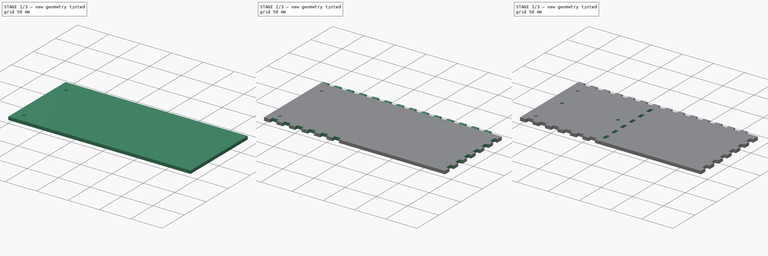
[diagram: build sequence overview — one tinted view per stage of 3, left to right]
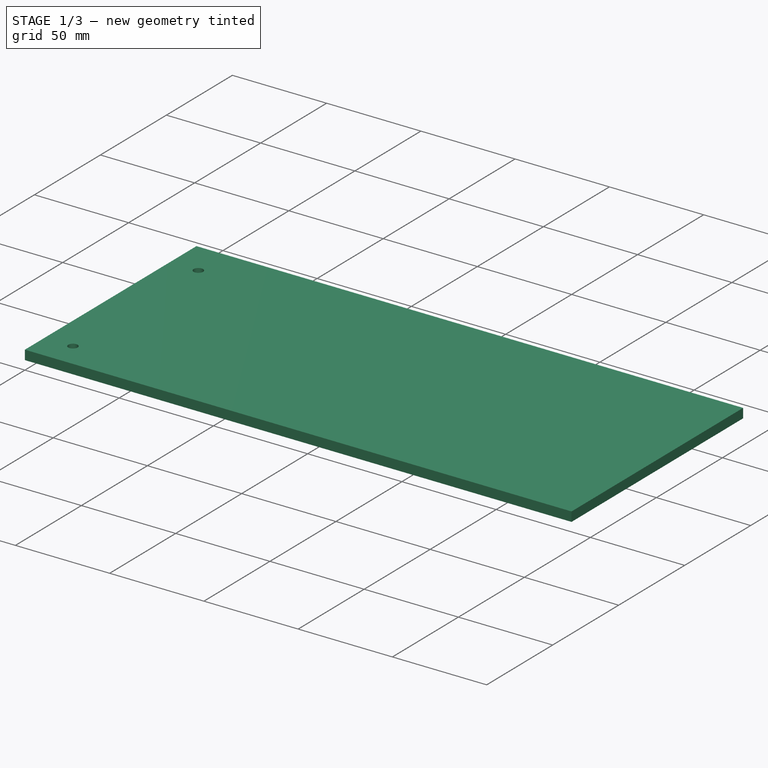
[diagram: stage 1 of 3 — iso view after this stage's code; geometry added in this stage tinted green]
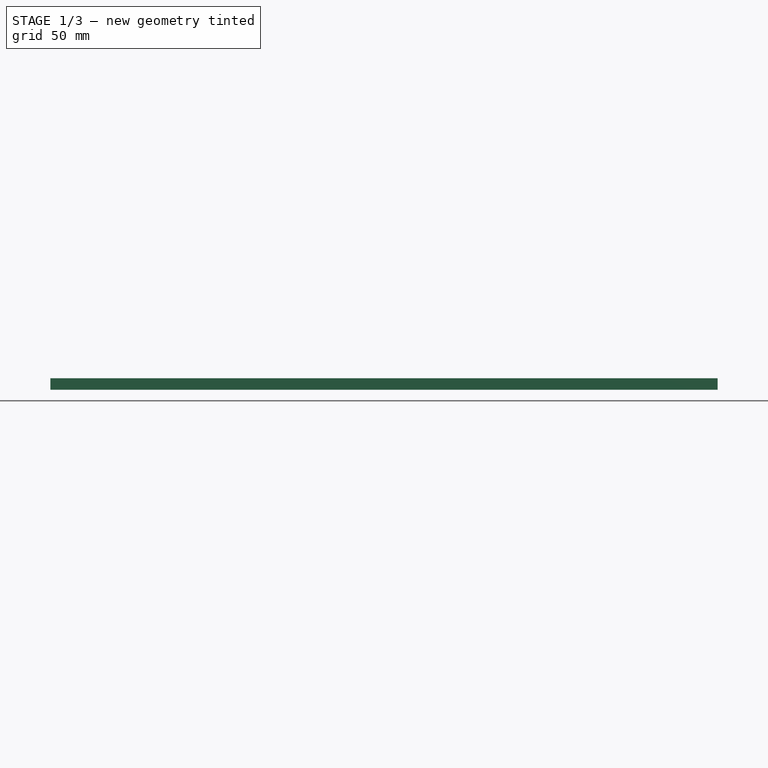
[diagram: stage 1 of 3 — front view after this stage's code; geometry added in this stage tinted green]
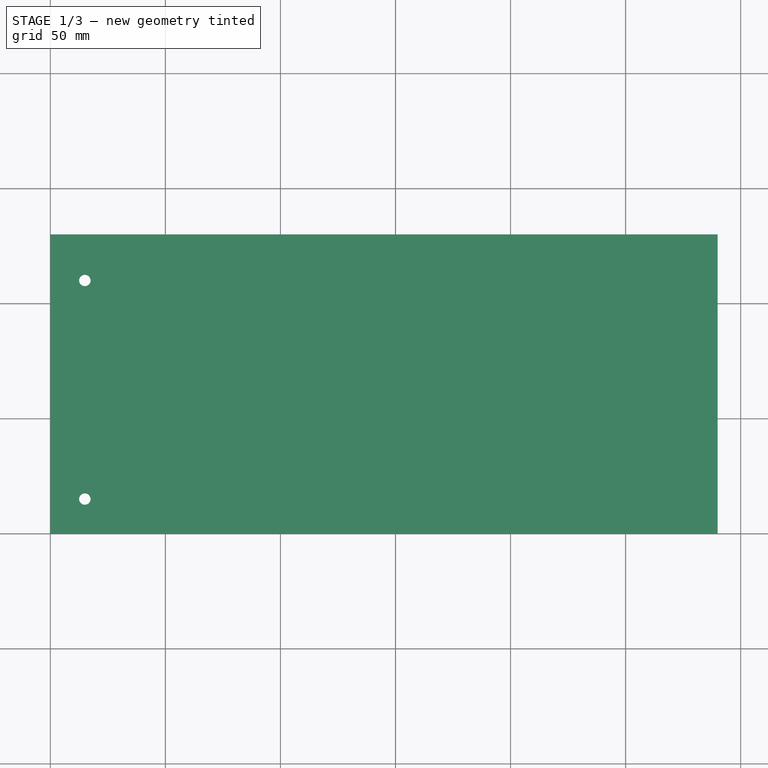
[diagram: stage 1 of 3 — top view after this stage's code; geometry added in this stage tinted green]
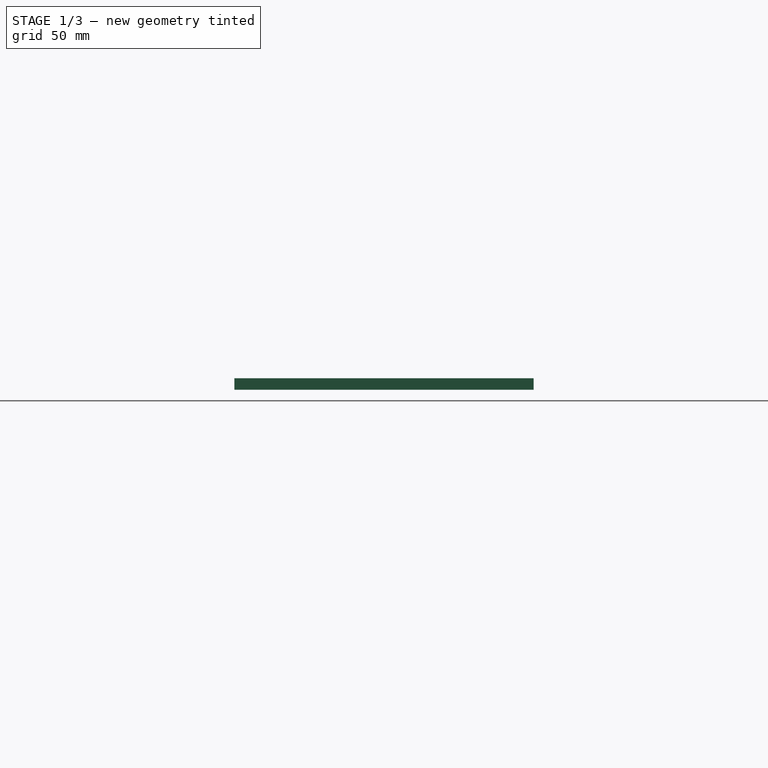
[diagram: stage 1 of 3 — right view after this stage's code; geometry added in this stage tinted green]
FCSTD DOCUMENT  (FreeCAD 0.19R24267 +148 (Git))
Label: BasePlate
License: All rights reserved
LicenseURL: http://en.wikipedia.org/wiki/All_rights_reserved
objects: Sketcher::SketchObject×7, PartDesign::Pocket×5, PartDesign::Pad×2, PartDesign::Body×1
note: 22 computed .brp shape members not serialized (recipe doc carries the construction recipe); baked Part::Feature solids carry a one-line shape summary decoded from their .brp

FEATURE [Sketcher::SketchObject] Sketch  label="BaseProfile"
  FullyConstrained = true
  MapMode = 5
  Support = -> [XY_Plane]
  sketch-geometry (4):
    g0: LineSegment StartX=0 StartY=0 StartZ=0 EndX=290 EndY=0 EndZ=0
    g1: LineSegment StartX=290 StartY=0 StartZ=0 EndX=290 EndY=130 EndZ=0
    g2: LineSegment StartX=290 StartY=130 StartZ=0 EndX=0 EndY=130 EndZ=0
    g3: LineSegment StartX=0 StartY=130 StartZ=0 EndX=0 EndY=0 EndZ=0
  constraints (11):
    c: Coincident(g0,g1)
    c: Coincident(g1,g2)
    c: Coincident(g2,g3)
    c: Coincident(g3,g0)
    c: Horizontal(g0)
    c: Horizontal(g2)
    c: Vertical(g1)
    c: Vertical(g3)
    c: Coincident(g0,g-1)
    c: Distance(g0) = 290
    c: Distance(g1) = 130
FEATURE [PartDesign::Pad] Pad
  Direction = (1,1,1)
  Length = 5
  Length2 = 100
  Midplane = true
  Profile = -> Sketch
  Refine = true
  Type = 0
FEATURE [Sketcher::SketchObject] Sketch001  label="hole"
  FullyConstrained = true
  MapMode = 5
  Placement = pos=(0,0,2.5) rot=(0,0,1;0rad)
  Support = -> [Pad]
  sketch-geometry (3):
    g0: Circle CenterX=15 CenterY=110 CenterZ=0 NormalX=0 NormalY=0 NormalZ=1 AngleXU=0 Radius=2.5
    g1: Circle CenterX=15 CenterY=15 CenterZ=0 NormalX=0 NormalY=0 NormalZ=1 AngleXU=0 Radius=2.5
    g2: LineSegment StartX=15 StartY=110 StartZ=0 EndX=15 EndY=15 EndZ=0
  constraints (8):
    c: Equal(g1,g0)
    c: Radius(g0) = 2.5
    c: Coincident(g2,g0)
    c: Coincident(g2,g1)
    c: Vertical(g2)
    c: Distance(g-1,g2) = 15
    c: Distance(g1,g-1) = 15
    c: Distance(g2) = 95
FEATURE [PartDesign::Pocket] Pocket  label="HoleOfTry_Square"
  BaseFeature = -> Pad
  Length = 5
  Length2 = 100
  Profile = -> Sketch001
  Refine = true
  Type = 1
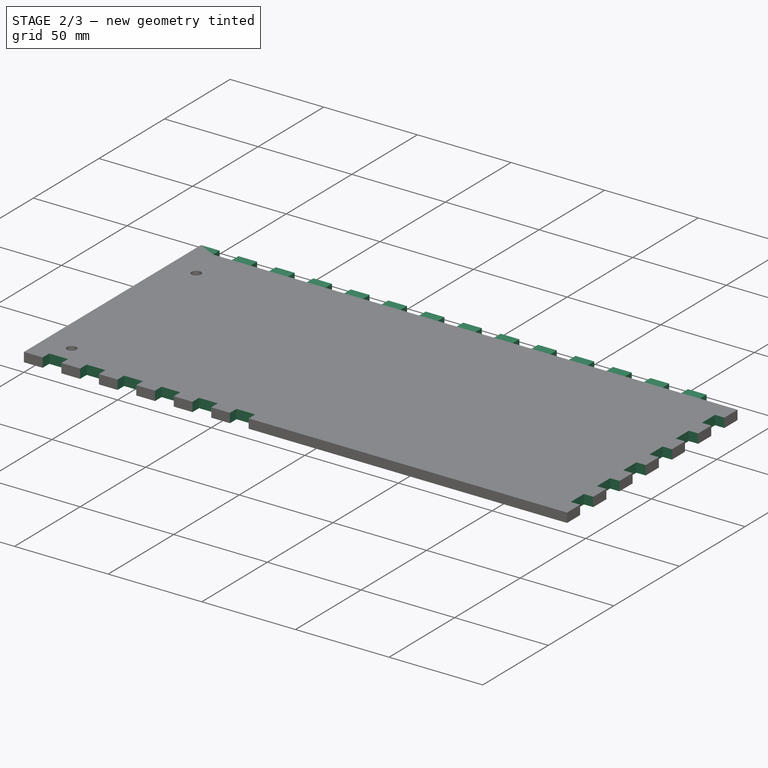
[diagram: stage 2 of 3 — iso view after this stage's code; geometry added in this stage tinted green]
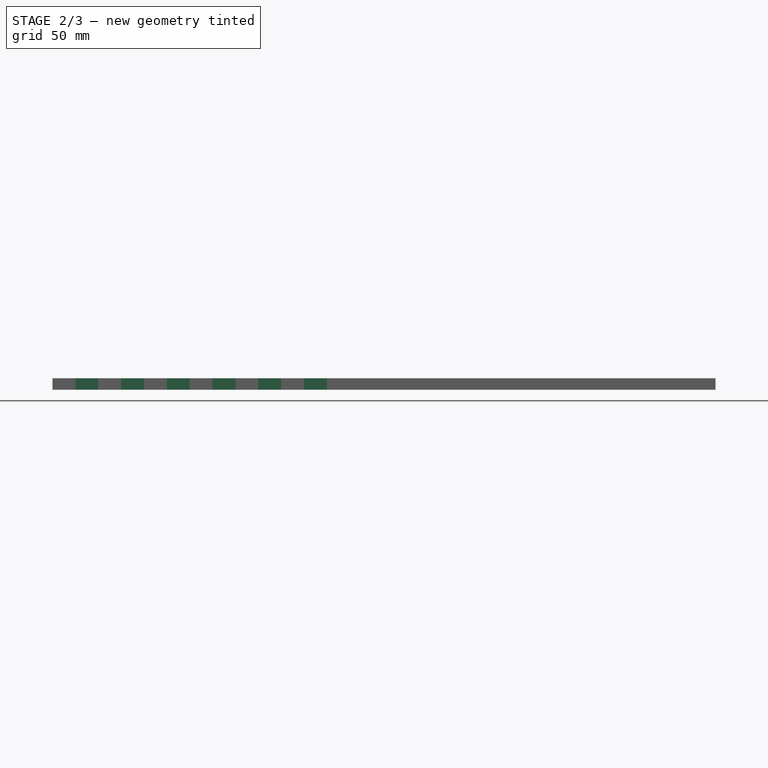
[diagram: stage 2 of 3 — front view after this stage's code; geometry added in this stage tinted green]
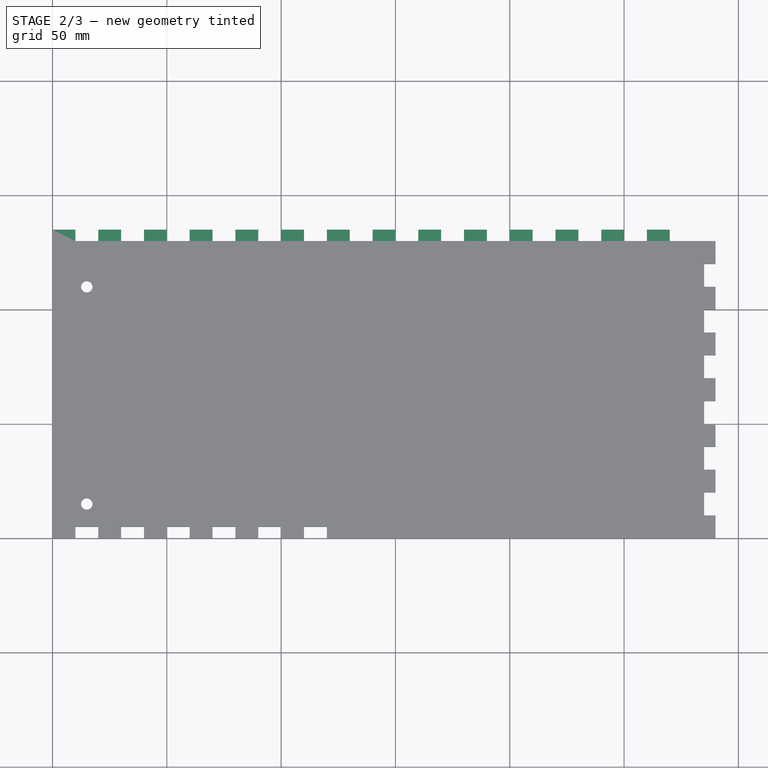
[diagram: stage 2 of 3 — top view after this stage's code; geometry added in this stage tinted green]
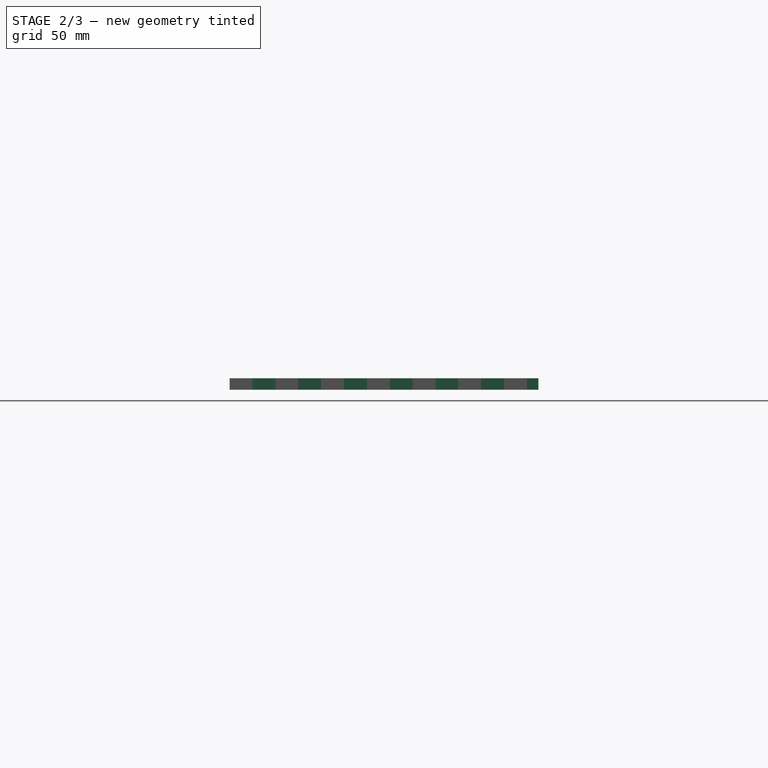
[diagram: stage 2 of 3 — right view after this stage's code; geometry added in this stage tinted green]
FEATURE [Sketcher::SketchObject] Sketch002
  FullyConstrained = true
  MapMode = 5
  Placement = pos=(0,0,2.5) rot=(0,0,1;0rad)
  Support = -> [Pocket]
  sketch-geometry (29):
    g0: LineSegment StartX=290 StartY=20 StartZ=0 EndX=285 EndY=20 EndZ=0
    g1: LineSegment StartX=285 StartY=20 StartZ=0 EndX=285 EndY=10 EndZ=0
    g2: LineSegment StartX=285 StartY=10 StartZ=0 EndX=290 EndY=10 EndZ=0
    g3: LineSegment StartX=290 StartY=10 StartZ=0 EndX=290 EndY=20 EndZ=0
    g4: LineSegment StartX=290 StartY=40 StartZ=0 EndX=285 EndY=40 EndZ=0
    g5: LineSegment StartX=285 StartY=40 StartZ=0 EndX=285 EndY=30 EndZ=0
    g6: LineSegment StartX=285 StartY=30 StartZ=0 EndX=290 EndY=30 EndZ=0
    g7: LineSegment StartX=290 StartY=30 StartZ=0 EndX=290 EndY=40 EndZ=0
    g8: LineSegment StartX=290 StartY=20 StartZ=0 EndX=290 EndY=40 EndZ=0
    g9: LineSegment StartX=290 StartY=60 StartZ=0 EndX=285 EndY=60 EndZ=0
    g10: LineSegment StartX=285 StartY=60 StartZ=0 EndX=285 EndY=50 EndZ=0
    g11: LineSegment StartX=285 StartY=50 StartZ=0 EndX=290 EndY=50 EndZ=0
    g12: LineSegment StartX=290 StartY=50 StartZ=0 EndX=290 EndY=60 EndZ=0
    g13: LineSegment StartX=290 StartY=40 StartZ=0 EndX=290 EndY=60 EndZ=0
    g14: LineSegment StartX=290 StartY=80 StartZ=0 EndX=285 EndY=80 EndZ=0
    g15: LineSegment StartX=285 StartY=80 StartZ=0 EndX=285 EndY=70 EndZ=0
    g16: LineSegment StartX=285 StartY=70 StartZ=0 EndX=290 EndY=70 EndZ=0
    g17: LineSegment StartX=290 StartY=70 StartZ=0 EndX=290 EndY=80 EndZ=0
    g18: LineSegment StartX=290 StartY=60 StartZ=0 EndX=290 EndY=80 EndZ=0
    g19: LineSegment StartX=290 StartY=100 StartZ=0 EndX=285 EndY=100 EndZ=0
    g20: LineSegment StartX=285 StartY=100 StartZ=0 EndX=285 EndY=90 EndZ=0
    g21: LineSegment StartX=285 StartY=90 StartZ=0 EndX=290 EndY=90 EndZ=0
    g22: LineSegment StartX=290 StartY=90 StartZ=0 EndX=290 EndY=100 EndZ=0
    g23: LineSegment StartX=290 StartY=80 StartZ=0 EndX=290 EndY=100 EndZ=0
    g24: LineSegment StartX=290 StartY=120 StartZ=0 EndX=285 EndY=120 EndZ=0
    g25: LineSegment StartX=285 StartY=120 StartZ=0 EndX=285 EndY=110 EndZ=0
    g26: LineSegment StartX=285 StartY=110 StartZ=0 EndX=290 EndY=110 EndZ=0
    g27: LineSegment StartX=290 StartY=110 StartZ=0 EndX=290 EndY=120 EndZ=0
    g28: LineSegment StartX=290 StartY=100 StartZ=0 EndX=290 EndY=120 EndZ=0
  constraints (82):
    c: Coincident(g0,g1)
    c: Coincident(g1,g2)
    c: Coincident(g2,g3)
    c: Coincident(g3,g0)
    c: Horizontal(g0)
    c: Horizontal(g2)
    c: Vertical(g1)
    c: Vertical(g3)
    c: Distance(g3) = 10
    c: Distance(g2) = 5
    c: Distance(g-1,g2) = 10
    c: Distance(g2,g-2) = 290
    c: Coincident(g4,g5)
    c: Coincident(g5,g6)
    c: Coincident(g6,g7)
    c: Coincident(g7,g4)
    c: Horizontal(g4)
    c: Horizontal(g6)
    c: Vertical(g5)
    c: Vertical(g7)
    c: Equal(g3,g7) = 10
    c: Equal(g2,g6) = 5
    c: Coincident(g0,g8)
    c: Coincident(g4,g8)
    c: Distance(g8) = 20
    c: Coincident(g9,g10)
    c: Coincident(g10,g11)
    c: Coincident(g11,g12)
    c: Coincident(g12,g9)
    c: Horizontal(g9)
    c: Horizontal(g11)
    c: Vertical(g10)
    c: Vertical(g12)
    c: Equal(g3,g12) = 10
    c: Equal(g2,g11) = 5
    c: Coincident(g4,g13)
    c: Coincident(g9,g13)
    c: Equal(g8,g13)
    c: Parallel(g13,g8)
    c: Coincident(g14,g15)
    c: Coincident(g15,g16)
    c: Coincident(g16,g17)
    c: Coincident(g17,g14)
    c: Horizontal(g14)
    c: Horizontal(g16)
    c: Vertical(g15)
    c: Vertical(g17)
    c: Equal(g3,g17) = 10
    c: Equal(g2,g16) = 5
    c: Coincident(g9,g18)
    c: Coincident(g14,g18)
    c: Equal(g8,g18)
    c: Parallel(g18,g8)
    c: Coincident(g19,g20)
    c: Coincident(g20,g21)
    c: Coincident(g21,g22)
    c: Coincident(g22,g19)
    c: Horizontal(g19)
    c: Horizontal(g21)
    c: Vertical(g20)
    c: Vertical(g22)
    c: Equal(g3,g22) = 10
    c: Equal(g2,g21) = 5
    c: Coincident(g14,g23)
    c: Coincident(g19,g23)
    c: Equal(g8,g23)
    c: Parallel(g23,g8)
    c: Coincident(g24,g25)
    c: Coincident(g25,g26)
    c: Coincident(g26,g27)
    c: Coincident(g27,g24)
    c: Horizontal(g24)
    c: Horizontal(g26)
    c: Vertical(g25)
    c: Vertical(g27)
    c: Equal(g3,g27) = 10
    c: Equal(g2,g26) = 5
    c: Coincident(g19,g28)
    c: Coincident(g24,g28)
    c: Equal(g8,g28)
    c: Parallel(g28,g8)
    c: Vertical(g13)
FEATURE [PartDesign::Pocket] Pocket001  label="RightCrenel"
  BaseFeature = -> Pocket
  Length = 5
  Length2 = 100
  Profile = -> Sketch002
  Refine = true
  Type = 1
FEATURE [Sketcher::SketchObject] Sketch003
  ExternalGeometry = -> [Pocket001]
  FullyConstrained = true
  MapMode = 5
  Placement = pos=(0,0,2.5) rot=(0,0,1;0rad)
  Support = -> [Pocket001]
  sketch-geometry (69):
    g0: LineSegment StartX=0 StartY=135 StartZ=0 EndX=10 EndY=135 EndZ=0
    g1: LineSegment StartX=10 StartY=135 StartZ=0 EndX=10 EndY=130 EndZ=0
    g2: LineSegment StartX=10 StartY=130 StartZ=0 EndX=0 EndY=130 EndZ=0
    g3: LineSegment StartX=0 StartY=130 StartZ=0 EndX=0 EndY=135 EndZ=0
    g4: LineSegment StartX=20 StartY=135 StartZ=0 EndX=30 EndY=135 EndZ=0
    g5: LineSegment StartX=30 StartY=135 StartZ=0 EndX=30 EndY=130 EndZ=0
    g6: LineSegment StartX=30 StartY=130 StartZ=0 EndX=20 EndY=130 EndZ=0
    g7: LineSegment StartX=20 StartY=130 StartZ=0 EndX=20 EndY=135 EndZ=0
    g8: LineSegment StartX=0 StartY=135 StartZ=0 EndX=20 EndY=135 EndZ=0
    g9: LineSegment StartX=40 StartY=135 StartZ=0 EndX=50 EndY=135 EndZ=0
    g10: LineSegment StartX=50 StartY=135 StartZ=0 EndX=50 EndY=130 EndZ=0
    g11: LineSegment StartX=50 StartY=130 StartZ=0 EndX=40 EndY=130 EndZ=0
    g12: LineSegment StartX=40 StartY=130 StartZ=0 EndX=40 EndY=135 EndZ=0
    g13: LineSegment StartX=20 StartY=135 StartZ=0 EndX=40 EndY=135 EndZ=0
    g14: LineSegment StartX=60 StartY=135 StartZ=0 EndX=70 EndY=135 EndZ=0
    g15: LineSegment StartX=70 StartY=135 StartZ=0 EndX=70 EndY=130 EndZ=0
    g16: LineSegment StartX=70 StartY=130 StartZ=0 EndX=60 EndY=130 EndZ=0
    g17: LineSegment StartX=60 StartY=130 StartZ=0 EndX=60 EndY=135 EndZ=0
    g18: LineSegment StartX=40 StartY=135 StartZ=0 EndX=60 EndY=135 EndZ=0
    g19: LineSegment StartX=80 StartY=135 StartZ=0 EndX=90 EndY=135 EndZ=0
    g20: LineSegment StartX=90 StartY=135 StartZ=0 EndX=90 EndY=130 EndZ=0
    g21: LineSegment StartX=90 StartY=130 StartZ=0 EndX=80 EndY=130 EndZ=0
    g22: LineSegment StartX=80 StartY=130 StartZ=0 EndX=80 EndY=135 EndZ=0
    g23: LineSegment StartX=60 StartY=135 StartZ=0 EndX=80 EndY=135 EndZ=0
    g24: LineSegment StartX=100 StartY=135 StartZ=0 EndX=110 EndY=135 EndZ=0
    g25: LineSegment StartX=110 StartY=135 StartZ=0 EndX=110 EndY=130 EndZ=0
    g26: LineSegment StartX=110 StartY=130 StartZ=0 EndX=100 EndY=130 EndZ=0
    g27: LineSegment StartX=100 StartY=130 StartZ=0 EndX=100 EndY=135 EndZ=0
    g28: LineSegment StartX=80 StartY=135 StartZ=0 EndX=100 EndY=135 EndZ=0
    g29: LineSegment StartX=120 StartY=135 StartZ=0 EndX=130 EndY=135 EndZ=0
    g30: LineSegment StartX=130 StartY=135 StartZ=0 EndX=130 EndY=130 EndZ=0
    g31: LineSegment StartX=130 StartY=130 StartZ=0 EndX=120 EndY=130 EndZ=0
    g32: LineSegment StartX=120 StartY=130 StartZ=0 EndX=120 EndY=135 EndZ=0
    g33: LineSegment StartX=100 StartY=135 StartZ=0 EndX=120 EndY=135 EndZ=0
    g34: LineSegment StartX=140 StartY=135 StartZ=0 EndX=150 EndY=135 EndZ=0
    g35: LineSegment StartX=150 StartY=135 StartZ=0 EndX=150 EndY=130 EndZ=0
    g36: LineSegment StartX=150 StartY=130 StartZ=0 EndX=140 EndY=130 EndZ=0
    g37: LineSegment StartX=140 StartY=130 StartZ=0 EndX=140 EndY=135 EndZ=0
    g38: LineSegment StartX=120 StartY=135 StartZ=0 EndX=140 EndY=135 EndZ=0
    g39: LineSegment StartX=160 StartY=135 StartZ=0 EndX=170 EndY=135 EndZ=0
    g40: LineSegment StartX=170 StartY=135 StartZ=0 EndX=170 EndY=130 EndZ=0
    g41: LineSegment StartX=170 StartY=130 StartZ=0 EndX=160 EndY=130 EndZ=0
    g42: LineSegment StartX=160 StartY=130 StartZ=0 EndX=160 EndY=135 EndZ=0
    g43: LineSegment StartX=140 StartY=135 StartZ=0 EndX=160 EndY=135 EndZ=0
    g44: LineSegment StartX=180 StartY=135 StartZ=0 EndX=190 EndY=135 EndZ=0
    g45: LineSegment StartX=190 StartY=135 StartZ=0 EndX=190 EndY=130 EndZ=0
    g46: LineSegment StartX=190 StartY=130 StartZ=0 EndX=180 EndY=130 EndZ=0
    g47: LineSegment StartX=180 StartY=130 StartZ=0 EndX=180 EndY=135 EndZ=0
    g48: LineSegment StartX=160 StartY=135 StartZ=0 EndX=180 EndY=135 EndZ=0
    g49: LineSegment StartX=200 StartY=135 StartZ=0 EndX=210 EndY=135 EndZ=0
    g50: LineSegment StartX=210 StartY=135 StartZ=0 EndX=210 EndY=130 EndZ=0
    g51: LineSegment StartX=210 StartY=130 StartZ=0 EndX=200 EndY=130 EndZ=0
    g52: LineSegment StartX=200 StartY=130 StartZ=0 EndX=200 EndY=135 EndZ=0
    g53: LineSegment StartX=180 StartY=135 StartZ=0 EndX=200 EndY=135 EndZ=0
    g54: LineSegment StartX=220 StartY=135 StartZ=0 EndX=230 EndY=135 EndZ=0
    g55: LineSegment StartX=230 StartY=135 StartZ=0 EndX=230 EndY=130 EndZ=0
    g56: LineSegment StartX=230 StartY=130 StartZ=0 EndX=220 EndY=130 EndZ=0
    g57: LineSegment StartX=220 StartY=130 StartZ=0 EndX=220 EndY=135 EndZ=0
    g58: LineSegment StartX=200 StartY=135 StartZ=0 EndX=220 EndY=135 EndZ=0
    g59: LineSegment StartX=240 StartY=135 StartZ=0 EndX=250 EndY=135 EndZ=0
    g60: LineSegment StartX=250 StartY=135 StartZ=0 EndX=250 EndY=130 EndZ=0
    g61: LineSegment StartX=250 StartY=130 StartZ=0 EndX=240 EndY=130 EndZ=0
    g62: LineSegment StartX=240 StartY=130 StartZ=0 EndX=240 EndY=135 EndZ=0
    g63: LineSegment StartX=220 StartY=135 StartZ=0 EndX=240 EndY=135 EndZ=0
    g64: LineSegment StartX=260 StartY=135 StartZ=0 EndX=270 EndY=135 EndZ=0
    g65: LineSegment StartX=270 StartY=135 StartZ=0 EndX=270 EndY=130 EndZ=0
    g66: LineSegment StartX=270 StartY=130 StartZ=0 EndX=260 EndY=130 EndZ=0
    g67: LineSegment StartX=260 StartY=130 StartZ=0 EndX=260 EndY=135 EndZ=0
    g68: LineSegment StartX=240 StartY=135 StartZ=0 EndX=260 EndY=135 EndZ=0
  constraints (193):
    c: Coincident(g0,g1)
    c: Coincident(g1,g2)
    c: Coincident(g2,g3)
    c: Coincident(g3,g0)
    c: Horizontal(g0)
    c: Horizontal(g2)
    c: Vertical(g1)
    c: Vertical(g3)
    c: Distance(g2) = 10
    c: Distance(g3) = 5
    c: Coincident(g4,g5)
    c: Coincident(g5,g6)
    c: Coincident(g6,g7)
    c: Coincident(g7,g4)
    c: Horizontal(g4)
    c: Horizontal(g6)
    c: Vertical(g5)
    c: Vertical(g7)
    c: Equal(g2,g6) = 10
    c: Equal(g3,g7) = 5
    c: Coincident(g0,g8)
    c: Coincident(g4,g8)
    c: Distance(g8) = 20
    c: Angle(g8) = 0
    c: Coincident(g9,g10)
    c: Coincident(g10,g11)
    c: Coincident(g11,g12)
    c: Coincident(g12,g9)
    c: Horizontal(g9)
    c: Horizontal(g11)
    c: Vertical(g10)
    c: Vertical(g12)
    c: Equal(g2,g11) = 10
    c: Equal(g3,g12) = 5
    c: Coincident(g4,g13)
    c: Coincident(g9,g13)
    c: Equal(g8,g13)
    c: Parallel(g13,g8)
    c: Coincident(g14,g15)
    c: Coincident(g15,g16)
    c: Coincident(g16,g17)
    c: Coincident(g17,g14)
    c: Horizontal(g14)
    c: Horizontal(g16)
    c: Vertical(g15)
    c: Vertical(g17)
    c: Equal(g2,g16) = 10
    c: Equal(g3,g17) = 5
    c: Coincident(g9,g18)
    c: Coincident(g14,g18)
    c: Equal(g8,g18)
    c: Parallel(g18,g8)
    c: Coincident(g19,g20)
    c: Coincident(g20,g21)
    c: Coincident(g21,g22)
    c: Coincident(g22,g19)
    c: Horizontal(g19)
    c: Horizontal(g21)
    c: Vertical(g20)
    c: Vertical(g22)
    c: Equal(g2,g21) = 10
    c: Equal(g3,g22) = 5
    c: Coincident(g14,g23)
    c: Coincident(g19,g23)
    c: Equal(g8,g23)
    c: Parallel(g23,g8)
    c: Coincident(g24,g25)
    c: Coincident(g25,g26)
    c: Coincident(g26,g27)
    c: Coincident(g27,g24)
    c: Horizontal(g24)
    c: Horizontal(g26)
    c: Vertical(g25)
    c: Vertical(g27)
    c: Equal(g2,g26) = 10
    c: Equal(g3,g27) = 5
    c: Coincident(g19,g28)
    c: Coincident(g24,g28)
    c: Equal(g8,g28)
    c: Parallel(g28,g8)
    c: Coincident(g29,g30)
    c: Coincident(g30,g31)
    c: Coincident(g31,g32)
    c: Coincident(g32,g29)
    c: Horizontal(g29)
    c: Horizontal(g31)
    c: Vertical(g30)
    c: Vertical(g32)
    c: Equal(g2,g31) = 10
    c: Equal(g3,g32) = 5
    c: Coincident(g24,g33)
    c: Coincident(g29,g33)
    c: Equal(g8,g33)
    c: Parallel(g33,g8)
    c: Coincident(g34,g35)
    c: Coincident(g35,g36)
    c: Coincident(g36,g37)
    c: Coincident(g37,g34)
    c: Horizontal(g34)
    c: Horizontal(g36)
    c: Vertical(g35)
    c: Vertical(g37)
    c: Equal(g2,g36) = 10
    c: Equal(g3,g37) = 5
    c: Coincident(g29,g38)
    c: Coincident(g34,g38)
    c: Equal(g8,g38)
    c: Parallel(g38,g8)
    c: Coincident(g39,g40)
    c: Coincident(g40,g41)
    c: Coincident(g41,g42)
    c: Coincident(g42,g39)
    c: Horizontal(g39)
    c: Horizontal(g41)
    c: Vertical(g40)
    c: Vertical(g42)
    c: Equal(g2,g41) = 10
    c: Equal(g3,g42) = 5
    c: Coincident(g34,g43)
    c: Coincident(g39,g43)
    c: Equal(g8,g43)
    c: Parallel(g43,g8)
    c: Coincident(g44,g45)
    c: Coincident(g45,g46)
    c: Coincident(g46,g47)
    c: Coincident(g47,g44)
    c: Horizontal(g44)
    c: Horizontal(g46)
    c: Vertical(g45)
    c: Vertical(g47)
    c: Equal(g2,g46) = 10
    c: Equal(g3,g47) = 5
    c: Coincident(g39,g48)
    c: Coincident(g44,g48)
    c: Equal(g8,g48)
    c: Parallel(g48,g8)
    c: Coincident(g49,g50)
    c: Coincident(g50,g51)
    c: Coincident(g51,g52)
    c: Coincident(g52,g49)
    c: Horizontal(g49)
    c: Horizontal(g51)
    c: Vertical(g50)
    c: Vertical(g52)
    c: Equal(g2,g51) = 10
    c: Equal(g3,g52) = 5
    c: Coincident(g44,g53)
    c: Coincident(g49,g53)
    c: Equal(g8,g53)
    c: Parallel(g53,g8)
    c: Coincident(g54,g55)
    c: Coincident(g55,g56)
    c: Coincident(g56,g57)
    c: Coincident(g57,g54)
    c: Horizontal(g54)
    c: Horizontal(g56)
    c: Vertical(g55)
    c: Vertical(g57)
    c: Equal(g2,g56) = 10
    c: Equal(g3,g57) = 5
    c: Coincident(g49,g58)
    c: Coincident(g54,g58)
    c: Equal(g8,g58)
    c: Parallel(g58,g8)
    c: Coincident(g59,g60)
    c: Coincident(g60,g61)
    c: Coincident(g61,g62)
    c: Coincident(g62,g59)
    c: Horizontal(g59)
    c: Horizontal(g61)
    c: Vertical(g60)
    c: Vertical(g62)
    c: Equal(g2,g61) = 10
    c: Equal(g3,g62) = 5
    c: Coincident(g54,g63)
    c: Coincident(g59,g63)
    c: Equal(g8,g63)
    c: Parallel(g63,g8)
    c: Coincident(g64,g65)
    c: Coincident(g65,g66)
    c: Coincident(g66,g67)
    c: Coincident(g67,g64)
    c: Horizontal(g64)
    c: Horizontal(g66)
    c: Vertical(g65)
    c: Vertical(g67)
    c: Equal(g2,g66) = 10
    c: Equal(g3,g67) = 5
    c: Coincident(g59,g68)
    c: Coincident(g64,g68)
    c: Equal(g8,g68)
    c: Parallel(g68,g8)
    c: Coincident(g2,g-3)
FEATURE [PartDesign::Pad] Pad001  label="BackCrenel"
  BaseFeature = -> Pocket001
  Direction = (1,1,1)
  Length = 10
  Length2 = 100
  Profile = -> Sketch003
  Refine = true
  Type = 3
  UpToFace = -> Pocket001 [Face4]
FEATURE [Sketcher::SketchObject] Sketch004
  FullyConstrained = true
  MapMode = 5
  Placement = pos=(0,0,2.5) rot=(0,0,1;0rad)
  Support = -> [Pad001]
  sketch-geometry (29):
    g0: LineSegment StartX=10 StartY=0 StartZ=0 EndX=20 EndY=0 EndZ=0
    g1: LineSegment StartX=20 StartY=0 StartZ=0 EndX=20 EndY=5 EndZ=0
    g2: LineSegment StartX=20 StartY=5 StartZ=0 EndX=10 EndY=5 EndZ=0
    g3: LineSegment StartX=10 StartY=5 StartZ=0 EndX=10 EndY=0 EndZ=0
    g4: LineSegment StartX=30 StartY=0 StartZ=0 EndX=40 EndY=0 EndZ=0
    g5: LineSegment StartX=40 StartY=0 StartZ=0 EndX=40 EndY=5 EndZ=0
    g6: LineSegment StartX=40 StartY=5 StartZ=0 EndX=30 EndY=5 EndZ=0
    g7: LineSegment StartX=30 StartY=5 StartZ=0 EndX=30 EndY=0 EndZ=0
    g8: LineSegment StartX=10 StartY=0 StartZ=0 EndX=30 EndY=0 EndZ=0
    g9: LineSegment StartX=50 StartY=0 StartZ=0 EndX=60 EndY=0 EndZ=0
    g10: LineSegment StartX=60 StartY=0 StartZ=0 EndX=60 EndY=5 EndZ=0
    g11: LineSegment StartX=60 StartY=5 StartZ=0 EndX=50 EndY=5 EndZ=0
    g12: LineSegment StartX=50 StartY=5 StartZ=0 EndX=50 EndY=0 EndZ=0
    g13: LineSegment StartX=30 StartY=0 StartZ=0 EndX=50 EndY=0 EndZ=0
    g14: LineSegment StartX=70 StartY=0 StartZ=0 EndX=80 EndY=0 EndZ=0
    g15: LineSegment StartX=80 StartY=0 StartZ=0 EndX=80 EndY=5 EndZ=0
    g16: LineSegment StartX=80 StartY=5 StartZ=0 EndX=70 EndY=5 EndZ=0
    g17: LineSegment StartX=70 StartY=5 StartZ=0 EndX=70 EndY=0 EndZ=0
    g18: LineSegment StartX=50 StartY=0 StartZ=0 EndX=70 EndY=0 EndZ=0
    g19: LineSegment StartX=90 StartY=0 StartZ=0 EndX=100 EndY=0 EndZ=0
    g20: LineSegment StartX=100 StartY=0 StartZ=0 EndX=100 EndY=5 EndZ=0
    g21: LineSegment StartX=100 StartY=5 StartZ=0 EndX=90 EndY=5 EndZ=0
    g22: LineSegment StartX=90 StartY=5 StartZ=0 EndX=90 EndY=0 EndZ=0
    g23: LineSegment StartX=70 StartY=0 StartZ=0 EndX=90 EndY=0 EndZ=0
    g24: LineSegment StartX=110 StartY=0 StartZ=0 EndX=120 EndY=0 EndZ=0
    g25: LineSegment StartX=120 StartY=0 StartZ=0 EndX=120 EndY=5 EndZ=0
    g26: LineSegment StartX=120 StartY=5 StartZ=0 EndX=110 EndY=5 EndZ=0
    g27: LineSegment StartX=110 StartY=5 StartZ=0 EndX=110 EndY=0 EndZ=0
    g28: LineSegment StartX=90 StartY=0 StartZ=0 EndX=110 EndY=0 EndZ=0
  constraints (82):
    c: Coincident(g0,g1)
    c: Coincident(g1,g2)
    c: Coincident(g2,g3)
    c: Coincident(g3,g0)
    c: Horizontal(g0)
    c: Horizontal(g2)
    c: Vertical(g1)
    c: Vertical(g3)
    c: PointOnObject(g0,g-1)
    c: Distance(g-1,g3) = 10
    c: Distance(g0) = 10
    c: Distance(g1) = 5
    c: Coincident(g4,g5)
    c: Coincident(g5,g6)
    c: Coincident(g6,g7)
    c: Coincident(g7,g4)
    c: Horizontal(g4)
    c: Horizontal(g6)
    c: Vertical(g5)
    c: Vertical(g7)
    c: Equal(g0,g4) = 10
    c: Equal(g1,g5) = 5
    c: Coincident(g0,g8)
    c: Coincident(g4,g8)
    c: Distance(g8) = 20
    c: Coincident(g9,g10)
    c: Coincident(g10,g11)
    c: Coincident(g11,g12)
    c: Coincident(g12,g9)
    c: Horizontal(g9)
    c: Horizontal(g11)
    c: Vertical(g10)
    c: Vertical(g12)
    c: Equal(g0,g9) = 10
    c: Equal(g1,g10) = 5
    c: Coincident(g4,g13)
    c: Coincident(g9,g13)
    c: Equal(g8,g13)
    c: Parallel(g13,g8)
    c: Coincident(g14,g15)
    c: Coincident(g15,g16)
    c: Coincident(g16,g17)
    c: Coincident(g17,g14)
    c: Horizontal(g14)
    c: Horizontal(g16)
    c: Vertical(g15)
    c: Vertical(g17)
    c: Equal(g0,g14) = 10
    c: Equal(g1,g15) = 5
    c: Coincident(g9,g18)
    c: Coincident(g14,g18)
    c: Equal(g8,g18)
    c: Parallel(g18,g8)
    c: Coincident(g19,g20)
    c: Coincident(g20,g21)
    c: Coincident(g21,g22)
    c: Coincident(g22,g19)
    c: Horizontal(g19)
    c: Horizontal(g21)
    c: Vertical(g20)
    c: Vertical(g22)
    c: Equal(g0,g19) = 10
    c: Equal(g1,g20) = 5
    c: Coincident(g14,g23)
    c: Coincident(g19,g23)
    c: Equal(g8,g23)
    c: Parallel(g23,g8)
    c: Coincident(g24,g25)
    c: Coincident(g25,g26)
    c: Coincident(g26,g27)
    c: Coincident(g27,g24)
    c: Horizontal(g24)
    c: Horizontal(g26)
    c: Vertical(g25)
    c: Vertical(g27)
    c: Equal(g0,g24) = 10
    c: Equal(g1,g25) = 5
    c: Coincident(g19,g28)
    c: Coincident(g24,g28)
    c: Equal(g8,g28)
    c: Parallel(g28,g8)
    c: Horizontal(g8)
FEATURE [PartDesign::Pocket] Pocket002  label="FrontCrenel"
  BaseFeature = -> Pad001
  Length = 5
  Length2 = 100
  Profile = -> Sketch004
  Refine = true
  Type = 1
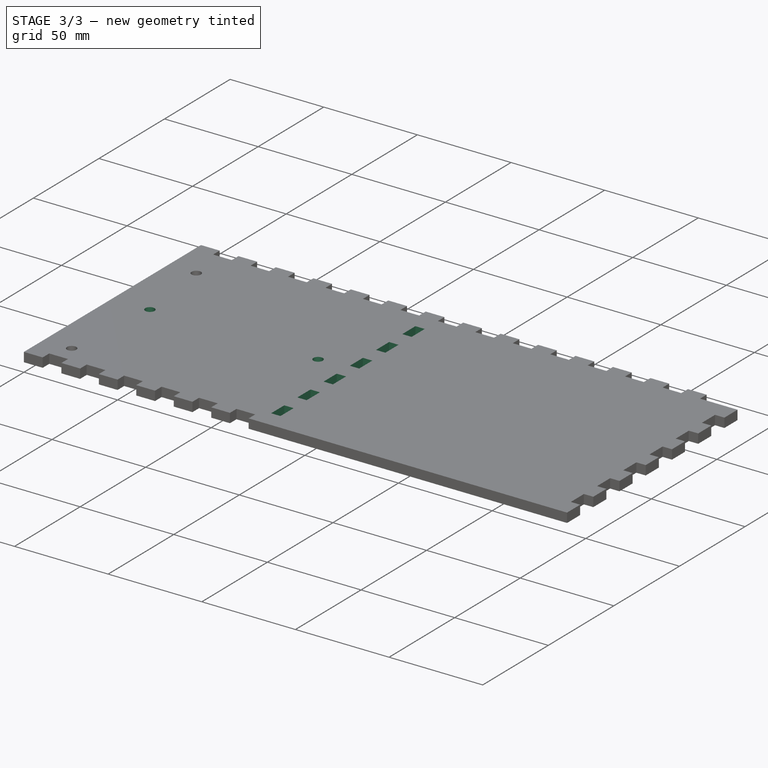
[diagram: stage 3 of 3 — iso view after this stage's code; geometry added in this stage tinted green]
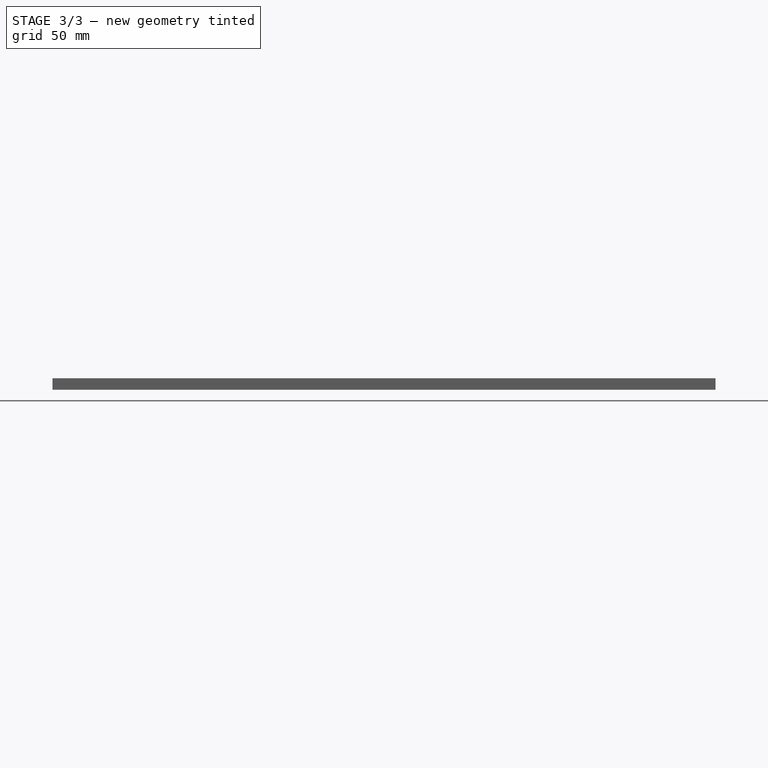
[diagram: stage 3 of 3 — front view after this stage's code; geometry added in this stage tinted green]
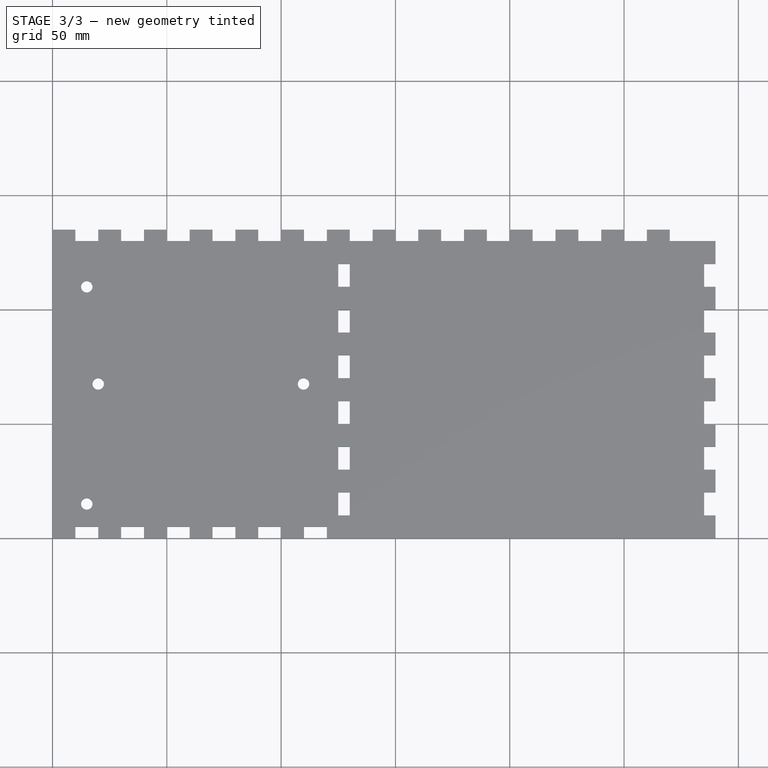
[diagram: stage 3 of 3 — top view after this stage's code; geometry added in this stage tinted green]
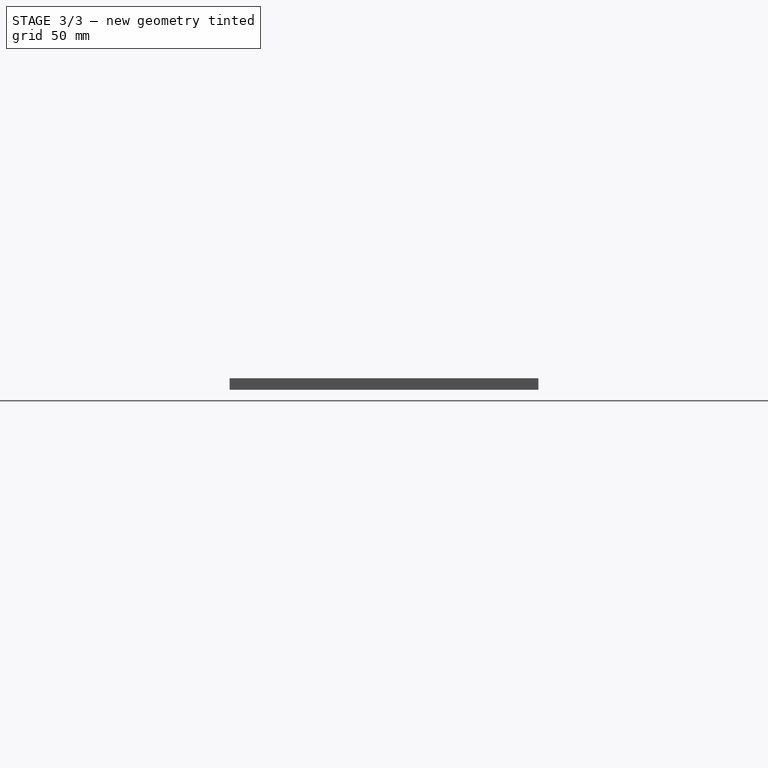
[diagram: stage 3 of 3 — right view after this stage's code; geometry added in this stage tinted green]
FEATURE [Sketcher::SketchObject] Sketch005
  FullyConstrained = true
  MapMode = 5
  Placement = pos=(0,0,2.5) rot=(0,0,1;0rad)
  Support = -> [Pocket002]
  sketch-geometry (29):
    g0: LineSegment StartX=130 StartY=20 StartZ=0 EndX=125 EndY=20 EndZ=0
    g1: LineSegment StartX=125 StartY=20 StartZ=0 EndX=125 EndY=10 EndZ=0
    g2: LineSegment StartX=125 StartY=10 StartZ=0 EndX=130 EndY=10 EndZ=0
    g3: LineSegment StartX=130 StartY=10 StartZ=0 EndX=130 EndY=20 EndZ=0
    g4: LineSegment StartX=130 StartY=40 StartZ=0 EndX=125 EndY=40 EndZ=0
    g5: LineSegment StartX=125 StartY=40 StartZ=0 EndX=125 EndY=30 EndZ=0
    g6: LineSegment StartX=125 StartY=30 StartZ=0 EndX=130 EndY=30 EndZ=0
    g7: LineSegment StartX=130 StartY=30 StartZ=0 EndX=130 EndY=40 EndZ=0
    g8: LineSegment StartX=130 StartY=20 StartZ=0 EndX=130 EndY=40 EndZ=0
    g9: LineSegment StartX=130 StartY=60 StartZ=0 EndX=125 EndY=60 EndZ=0
    g10: LineSegment StartX=125 StartY=60 StartZ=0 EndX=125 EndY=50 EndZ=0
    g11: LineSegment StartX=125 StartY=50 StartZ=0 EndX=130 EndY=50 EndZ=0
    g12: LineSegment StartX=130 StartY=50 StartZ=0 EndX=130 EndY=60 EndZ=0
    g13: LineSegment StartX=130 StartY=40 StartZ=0 EndX=130 EndY=60 EndZ=0
    g14: LineSegment StartX=130 StartY=80 StartZ=0 EndX=125 EndY=80 EndZ=0
    g15: LineSegment StartX=125 StartY=80 StartZ=0 EndX=125 EndY=70 EndZ=0
    g16: LineSegment StartX=125 StartY=70 StartZ=0 EndX=130 EndY=70 EndZ=0
    g17: LineSegment StartX=130 StartY=70 StartZ=0 EndX=130 EndY=80 EndZ=0
    g18: LineSegment StartX=130 StartY=60 StartZ=0 EndX=130 EndY=80 EndZ=0
    g19: LineSegment StartX=130 StartY=100 StartZ=0 EndX=125 EndY=100 EndZ=0
    g20: LineSegment StartX=125 StartY=100 StartZ=0 EndX=125 EndY=90 EndZ=0
    g21: LineSegment StartX=125 StartY=90 StartZ=0 EndX=130 EndY=90 EndZ=0
    g22: LineSegment StartX=130 StartY=90 StartZ=0 EndX=130 EndY=100 EndZ=0
    g23: LineSegment StartX=130 StartY=80 StartZ=0 EndX=130 EndY=100 EndZ=0
    g24: LineSegment StartX=130 StartY=120 StartZ=0 EndX=125 EndY=120 EndZ=0
    g25: LineSegment StartX=125 StartY=120 StartZ=0 EndX=125 EndY=110 EndZ=0
    g26: LineSegment StartX=125 StartY=110 StartZ=0 EndX=130 EndY=110 EndZ=0
    g27: LineSegment StartX=130 StartY=110 StartZ=0 EndX=130 EndY=120 EndZ=0
    g28: LineSegment StartX=130 StartY=100 StartZ=0 EndX=130 EndY=120 EndZ=0
  constraints (82):
    c: Coincident(g0,g1)
    c: Coincident(g1,g2)
    c: Coincident(g2,g3)
    c: Coincident(g3,g0)
    c: Horizontal(g0)
    c: Horizontal(g2)
    c: Vertical(g1)
    c: Vertical(g3)
    c: Distance(g2) = 5
    c: Distance(g3) = 10
    c: Distance(g-1,g2) = 10
    c: Distance(g1,g-2) = 125
    c: Coincident(g4,g5)
    c: Coincident(g5,g6)
    c: Coincident(g6,g7)
    c: Coincident(g7,g4)
    c: Horizontal(g4)
    c: Horizontal(g6)
    c: Vertical(g5)
    c: Vertical(g7)
    c: Equal(g2,g6) = 5
    c: Equal(g3,g7) = 10
    c: Coincident(g0,g8)
    c: Coincident(g4,g8)
    c: Distance(g8) = 20
    c: Angle(g8) = 1.5708
    c: Coincident(g9,g10)
    c: Coincident(g10,g11)
    c: Coincident(g11,g12)
    c: Coincident(g12,g9)
    c: Horizontal(g9)
    c: Horizontal(g11)
    c: Vertical(g10)
    c: Vertical(g12)
    c: Equal(g2,g11) = 5
    c: Equal(g3,g12) = 10
    c: Coincident(g4,g13)
    c: Coincident(g9,g13)
    c: Equal(g8,g13)
    c: Parallel(g13,g8)
    c: Coincident(g14,g15)
    c: Coincident(g15,g16)
    c: Coincident(g16,g17)
    c: Coincident(g17,g14)
    c: Horizontal(g14)
    c: Horizontal(g16)
    c: Vertical(g15)
    c: Vertical(g17)
    c: Equal(g2,g16) = 5
    c: Equal(g3,g17) = 10
    c: Coincident(g9,g18)
    c: Coincident(g14,g18)
    c: Equal(g8,g18)
    c: Parallel(g18,g8)
    c: Coincident(g19,g20)
    c: Coincident(g20,g21)
    c: Coincident(g21,g22)
    c: Coincident(g22,g19)
    c: Horizontal(g19)
    c: Horizontal(g21)
    c: Vertical(g20)
    c: Vertical(g22)
    c: Equal(g2,g21) = 5
    c: Equal(g3,g22) = 10
    c: Coincident(g14,g23)
    c: Coincident(g19,g23)
    c: Equal(g8,g23)
    c: Parallel(g23,g8)
    c: Coincident(g24,g25)
    c: Coincident(g25,g26)
    c: Coincident(g26,g27)
    c: Coincident(g27,g24)
    c: Horizontal(g24)
    c: Horizontal(g26)
    c: Vertical(g25)
    c: Vertical(g27)
    c: Equal(g2,g26) = 5
    c: Equal(g3,g27) = 10
    c: Coincident(g19,g28)
    c: Coincident(g24,g28)
    c: Equal(g8,g28)
    c: Parallel(g28,g8)
FEATURE [PartDesign::Pocket] Pocket003  label="InnerCrenel"
  BaseFeature = -> Pocket002
  Length = 5
  Length2 = 100
  Profile = -> Sketch005
  Refine = true
  Type = 1
FEATURE [Sketcher::SketchObject] Sketch006
  ExternalGeometry = -> [Pocket003]
  FullyConstrained = true
  MapMode = 5
  Placement = pos=(0,0,2.5) rot=(0,0,1;0rad)
  Support = -> [Pocket003]
  sketch-geometry (3):
    g0: Circle CenterX=20 CenterY=67.5 CenterZ=0 NormalX=0 NormalY=0 NormalZ=1 AngleXU=0 Radius=2.5
    g1: Circle CenterX=109.8 CenterY=67.5 CenterZ=0 NormalX=0 NormalY=0 NormalZ=1 AngleXU=0 Radius=2.5
    g2: LineSegment StartX=20 StartY=67.5 StartZ=0 EndX=109.8 EndY=67.5 EndZ=0
  constraints (7):
    c: Coincident(g2,g0)
    c: Coincident(g2,g1)
    c: Equal(g1,g0)
    c: Diameter(g0) = 5
    c: DistanceX(g-1,g0) = 20
    c: DistanceX(g2,g2) = 89.8
    c: Symmetric(g-1,g-3,g2)
FEATURE [PartDesign::Pocket] Pocket004  label="HolesForAruino_Support"
  BaseFeature = -> Pocket003
  Length = 5
  Length2 = 100
  Profile = -> Sketch006
  Refine = true
  Type = 1
FEATURE [PartDesign::Body] Body
  Group = -> [Sketch,Pad,Sketch001,Pocket,Sketch002,Pocket001,Sketch003,Pad001,Sketch004,Pocket002,Sketch005,Pocket003,Sketch006,Pocket004]
  Origin = -> Origin
  Tip = -> Pocket004
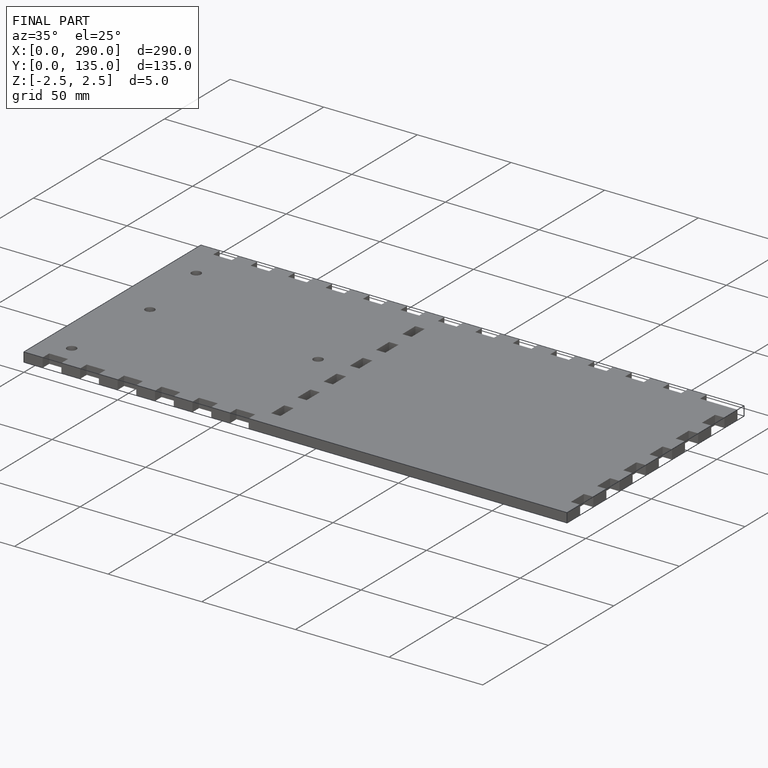
[diagram: finished part — iso view with bounding-box wireframe]
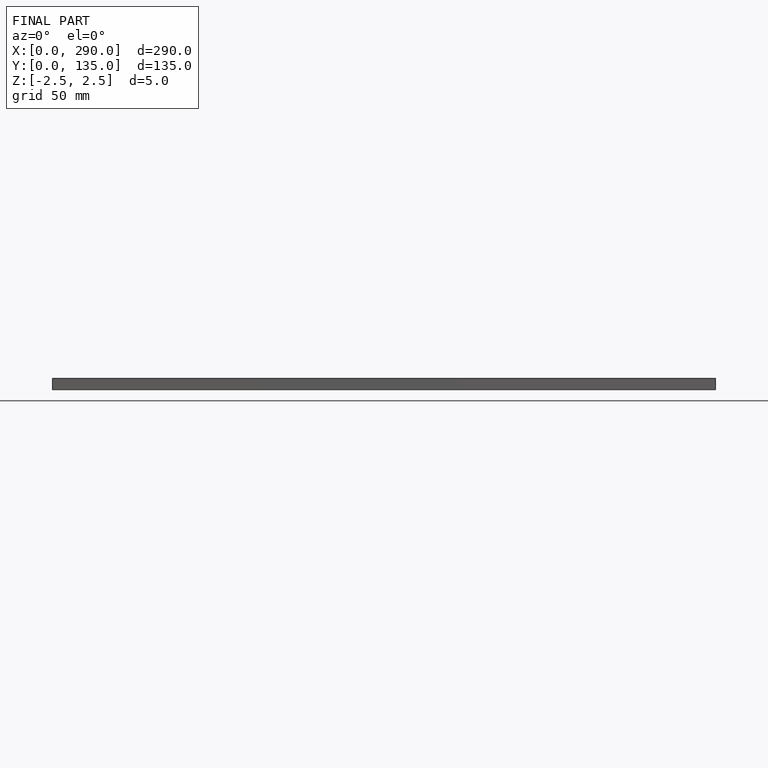
[diagram: finished part — front view with bounding-box wireframe]
